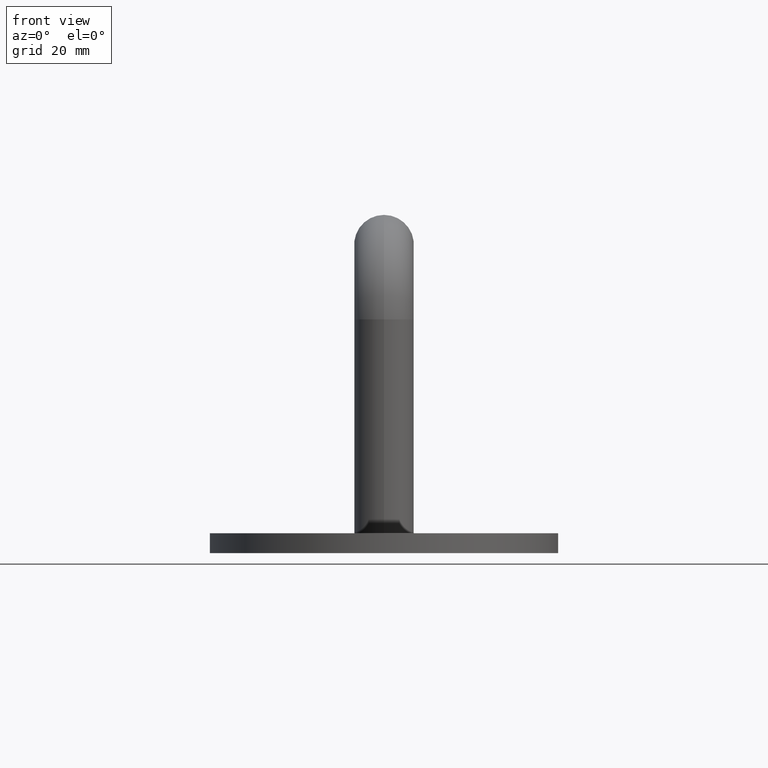
[diagram: clean part render]
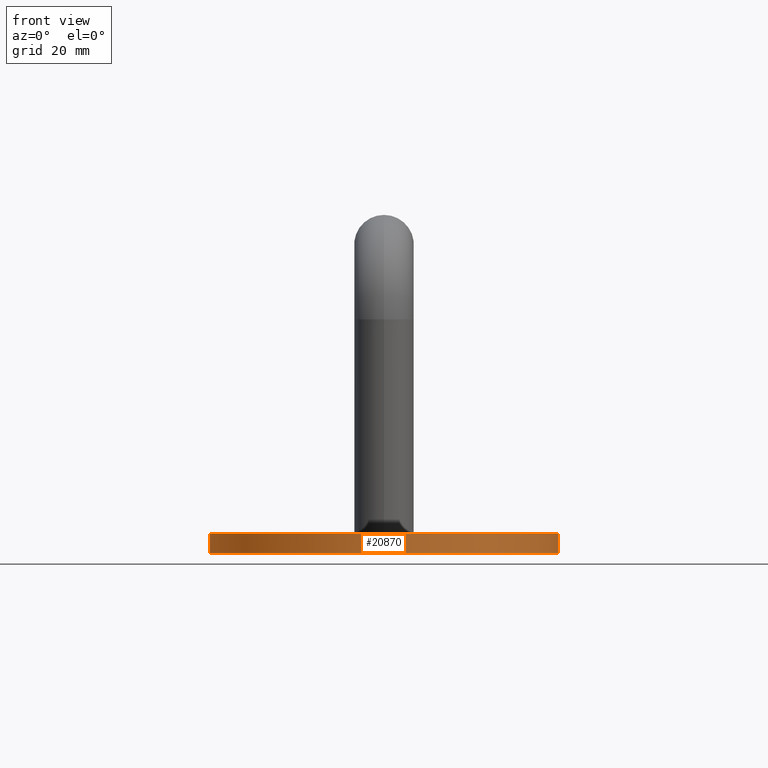
[diagram: same view with one face highlighted and labeled with its STEP entity id]
A machine part, front view. The second image highlights one B-rep face of the part: STEP entity #20870.
In plain terms, the highlighted cylindrical surface (partial cylindrical patch) has radius 35 mm, axis along (-0, -0, -1).
Its self-contained STEP definition (entity closure, byte-faithful):
#187 = ORIENTED_EDGE ( 'NONE', *, *, #6720, .T. ) ;
#1667 = CARTESIAN_POINT ( 'NONE',  ( -35.00000000000000000, 0.000000000000000000, 4.000000000000000000 ) ) ;
#3026 = AXIS2_PLACEMENT_3D ( 'NONE', #5347, #5574, #3829 ) ;
#3348 = CARTESIAN_POINT ( 'NONE',  ( 35.00000000000000000, 4.286263797015736496E-15, 4.000000000000000000 ) ) ;
#3555 = AXIS2_PLACEMENT_3D ( 'NONE', #16458, #6155, #18344 ) ;
#3829 = DIRECTION ( 'NONE',  ( 1.000000000000000000, 0.000000000000000000, 0.000000000000000000 ) ) ;
#3949 = DIRECTION ( 'NONE',  ( -0.000000000000000000, -0.000000000000000000, -1.000000000000000000 ) ) ;
#4374 = DIRECTION ( 'NONE',  ( -1.000000000000000000, 0.000000000000000000, 0.000000000000000000 ) ) ;
#5030 = AXIS2_PLACEMENT_3D ( 'NONE', #7509, #8180, #4374 ) ;
#5347 = CARTESIAN_POINT ( 'NONE',  ( 0.000000000000000000, 0.000000000000000000, 4.000000000000000000 ) ) ;
#5574 = DIRECTION ( 'NONE',  ( 0.000000000000000000, 0.000000000000000000, 1.000000000000000000 ) ) ;
#5817 = EDGE_CURVE ( 'NONE', #16583, #10234, #21335, .T. ) ;
#6155 = DIRECTION ( 'NONE',  ( 0.000000000000000000, 0.000000000000000000, 1.000000000000000000 ) ) ;
#6720 = EDGE_CURVE ( 'NONE', #10234, #8678, #10948, .T. ) ;
#6947 = DIRECTION ( 'NONE',  ( -0.000000000000000000, -0.000000000000000000, -1.000000000000000000 ) ) ;
#7509 = CARTESIAN_POINT ( 'NONE',  ( 0.000000000000000000, 0.000000000000000000, 4.000000000000000000 ) ) ;
#7741 = VECTOR ( 'NONE', #6947, 1000.000000000000000 ) ;
#8180 = DIRECTION ( 'NONE',  ( -0.000000000000000000, -0.000000000000000000, -1.000000000000000000 ) ) ;
#8418 = EDGE_LOOP ( 'NONE', ( #11247, #17883, #12133, #187 ) ) ;
#8678 = VERTEX_POINT ( 'NONE', #9278 ) ;
#9278 = CARTESIAN_POINT ( 'NONE',  ( 35.00000000000000000, 4.286263797015736496E-15, 0.000000000000000000 ) ) ;
#10234 = VERTEX_POINT ( 'NONE', #19067 ) ;
#10948 = CIRCLE ( 'NONE', #3555, 35.00000000000000000 ) ;
#11247 = ORIENTED_EDGE ( 'NONE', *, *, #17079, .F. ) ;
#11549 = CARTESIAN_POINT ( 'NONE',  ( -35.00000000000000000, 0.000000000000000000, 4.000000000000000000 ) ) ;
#12133 = ORIENTED_EDGE ( 'NONE', *, *, #5817, .T. ) ;
#13069 = EDGE_CURVE ( 'NONE', #16583, #15273, #19798, .T. ) ;
#15273 = VERTEX_POINT ( 'NONE', #3348 ) ;
#16458 = CARTESIAN_POINT ( 'NONE',  ( 0.000000000000000000, 0.000000000000000000, 0.000000000000000000 ) ) ;
#16583 = VERTEX_POINT ( 'NONE', #1667 ) ;
#16678 = VECTOR ( 'NONE', #3949, 1000.000000000000000 ) ;
#17079 = EDGE_CURVE ( 'NONE', #15273, #8678, #18337, .T. ) ;
#17139 = CARTESIAN_POINT ( 'NONE',  ( 35.00000000000000000, 4.286263797015736496E-15, 4.000000000000000000 ) ) ;
#17883 = ORIENTED_EDGE ( 'NONE', *, *, #13069, .F. ) ;
#18337 = LINE ( 'NONE', #17139, #7741 ) ;
#18344 = DIRECTION ( 'NONE',  ( 1.000000000000000000, 0.000000000000000000, 0.000000000000000000 ) ) ;
#18420 = FACE_OUTER_BOUND ( 'NONE', #8418, .T. ) ;
#19067 = CARTESIAN_POINT ( 'NONE',  ( -35.00000000000000000, 0.000000000000000000, 0.000000000000000000 ) ) ;
#19798 = CIRCLE ( 'NONE', #3026, 35.00000000000000000 ) ;
#20870 = ADVANCED_FACE ( 'NONE', ( #18420 ), #21419, .T. ) ;
#21335 = LINE ( 'NONE', #11549, #16678 ) ;
#21419 = CYLINDRICAL_SURFACE ( 'NONE', #5030, 35.00000000000000000 ) ;